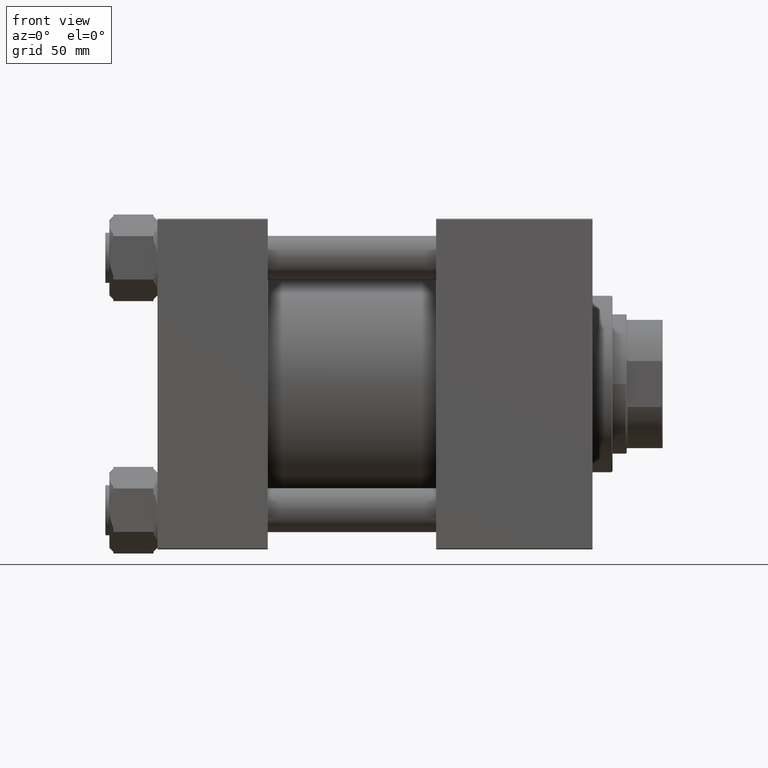
[diagram: clean part render]
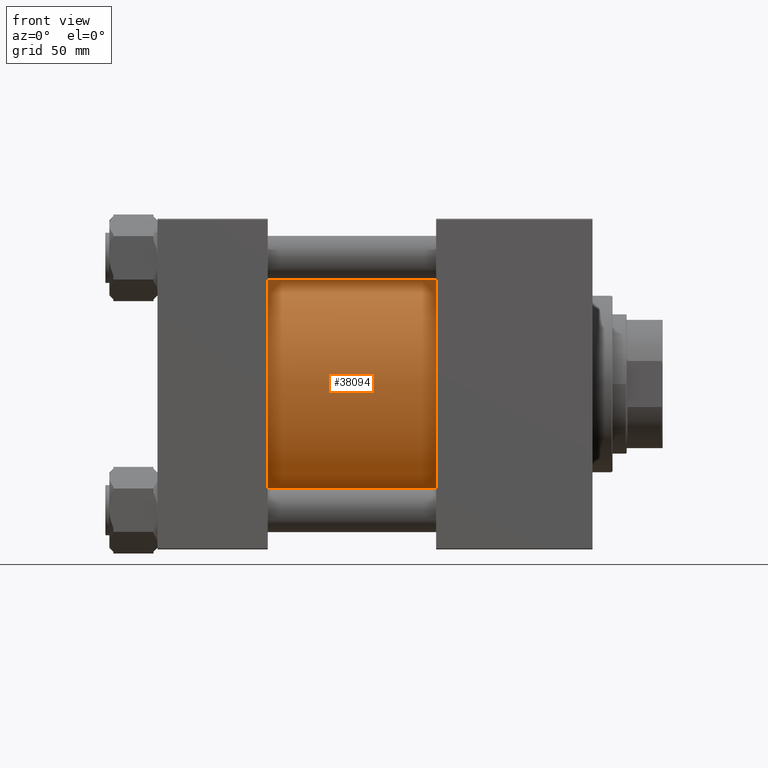
[diagram: same view with one face highlighted and labeled with its STEP entity id]
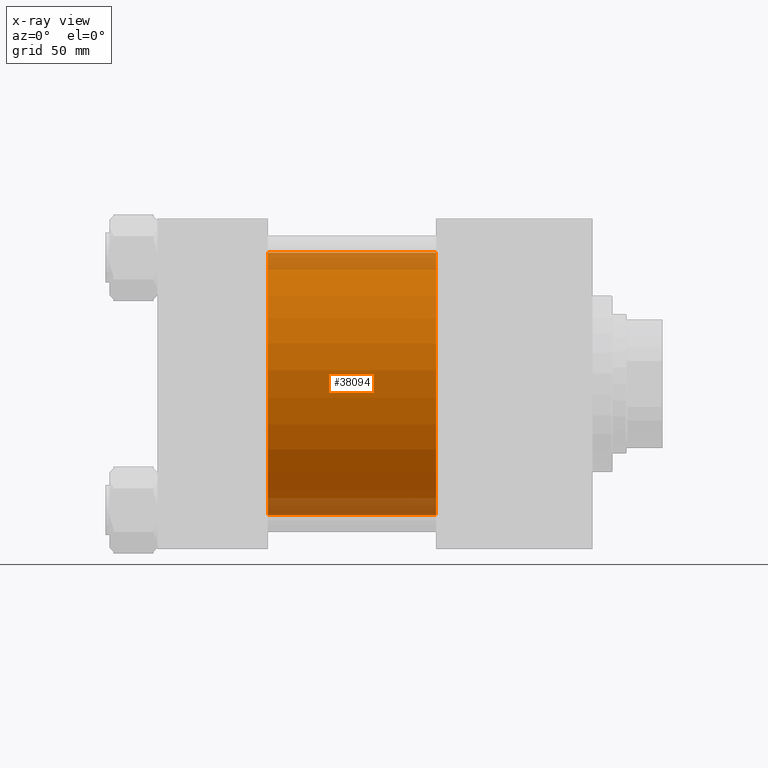
[diagram: x-ray of the same camera — body ghosted, the highlighted face saturated]
A machine part, front view. The second image highlights one B-rep face of the part: STEP entity #38094.
The next image is the same camera in x-ray: the body ghosted, the highlighted face saturated — about 13% of this face is hidden behind the body in this view.
In plain terms, the highlighted cylindrical surface (partial cylindrical patch) has radius 65.5 mm, axis along (-1, -0, -0).
Its self-contained STEP definition (entity closure, byte-faithful):
#667 = EDGE_CURVE ( 'NONE', #43708, #43625, #28499, .T. ) ;
#1586 = DIRECTION ( 'NONE',  ( 0.000000000000000000, 0.000000000000000000, 1.000000000000000000 ) ) ;
#2005 = CARTESIAN_POINT ( 'NONE',  ( 139.0000000000000000, 5.419351320449953395E-15, -65.50000000000001421 ) ) ;
#3079 = CARTESIAN_POINT ( 'NONE',  ( 139.0000000000000000, 5.419351320449953395E-15, -65.50000000000001421 ) ) ;
#4699 = AXIS2_PLACEMENT_3D ( 'NONE', #48279, #9533, #36734 ) ;
#8049 = ORIENTED_EDGE ( 'NONE', *, *, #667, .F. ) ;
#8799 = FACE_OUTER_BOUND ( 'NONE', #41486, .T. ) ;
#9355 = LINE ( 'NONE', #19203, #16967 ) ;
#9533 = DIRECTION ( 'NONE',  ( 1.000000000000000000, 0.000000000000000000, 0.000000000000000000 ) ) ;
#9737 = ORIENTED_EDGE ( 'NONE', *, *, #43837, .F. ) ;
#16864 = DIRECTION ( 'NONE',  ( 1.000000000000000000, -0.000000000000000000, -0.000000000000000000 ) ) ;
#16967 = VECTOR ( 'NONE', #50480, 1000.000000000000000 ) ;
#19203 = CARTESIAN_POINT ( 'NONE',  ( 139.0000000000000000, -2.602085213965210642E-15, 65.50000000000001421 ) ) ;
#19735 = CIRCLE ( 'NONE', #36925, 65.50000000000001421 ) ;
#20217 = CARTESIAN_POINT ( 'NONE',  ( 54.99999999999999289, -2.602085213965210642E-15, 0.000000000000000000 ) ) ;
#20534 = DIRECTION ( 'NONE',  ( -1.000000000000000000, -0.000000000000000000, -0.000000000000000000 ) ) ;
#20612 = DIRECTION ( 'NONE',  ( -1.000000000000000000, -0.000000000000000000, -0.000000000000000000 ) ) ;
#22380 = VERTEX_POINT ( 'NONE', #45939 ) ;
#22755 = EDGE_CURVE ( 'NONE', #43708, #29876, #9355, .T. ) ;
#24466 = CYLINDRICAL_SURFACE ( 'NONE', #43240, 65.50000000000001421 ) ;
#25293 = VECTOR ( 'NONE', #20534, 1000.000000000000000 ) ;
#28499 = CIRCLE ( 'NONE', #4699, 65.50000000000001421 ) ;
#29876 = VERTEX_POINT ( 'NONE', #35694 ) ;
#32074 = CARTESIAN_POINT ( 'NONE',  ( 139.0000000000000000, -2.602085213965210642E-15, 65.50000000000001421 ) ) ;
#32517 = DIRECTION ( 'NONE',  ( 0.000000000000000000, 0.000000000000000000, 1.000000000000000000 ) ) ;
#35694 = CARTESIAN_POINT ( 'NONE',  ( 54.99999999999999289, -2.602085213965210642E-15, 65.50000000000001421 ) ) ;
#36734 = DIRECTION ( 'NONE',  ( 0.000000000000000000, 0.000000000000000000, -1.000000000000000000 ) ) ;
#36749 = CARTESIAN_POINT ( 'NONE',  ( 139.0000000000000000, -2.602085213965210642E-15, 0.000000000000000000 ) ) ;
#36925 = AXIS2_PLACEMENT_3D ( 'NONE', #20217, #16864, #32517 ) ;
#37162 = LINE ( 'NONE', #2005, #25293 ) ;
#38094 = ADVANCED_FACE ( 'NONE', ( #8799 ), #24466, .T. ) ;
#38140 = ORIENTED_EDGE ( 'NONE', *, *, #48990, .T. ) ;
#39323 = ORIENTED_EDGE ( 'NONE', *, *, #22755, .T. ) ;
#41486 = EDGE_LOOP ( 'NONE', ( #9737, #8049, #39323, #38140 ) ) ;
#43240 = AXIS2_PLACEMENT_3D ( 'NONE', #36749, #20612, #1586 ) ;
#43625 = VERTEX_POINT ( 'NONE', #3079 ) ;
#43708 = VERTEX_POINT ( 'NONE', #32074 ) ;
#43837 = EDGE_CURVE ( 'NONE', #43625, #22380, #37162, .T. ) ;
#45939 = CARTESIAN_POINT ( 'NONE',  ( 54.99999999999999289, 5.419351320449953395E-15, -65.50000000000001421 ) ) ;
#48279 = CARTESIAN_POINT ( 'NONE',  ( 139.0000000000000000, -2.602085213965210642E-15, 0.000000000000000000 ) ) ;
#48990 = EDGE_CURVE ( 'NONE', #29876, #22380, #19735, .T. ) ;
#50480 = DIRECTION ( 'NONE',  ( -1.000000000000000000, -0.000000000000000000, -0.000000000000000000 ) ) ;